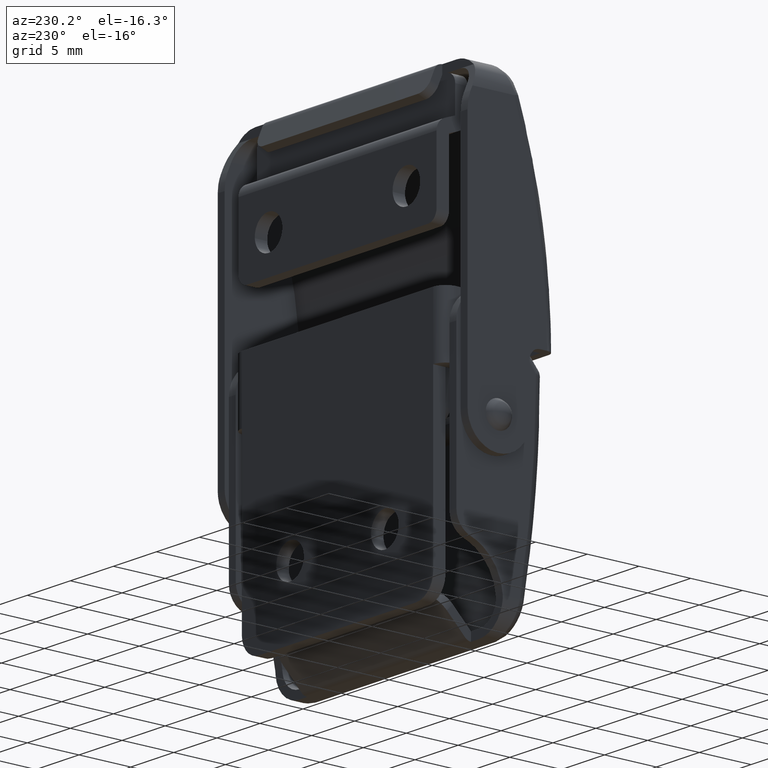
[diagram: clean part render]
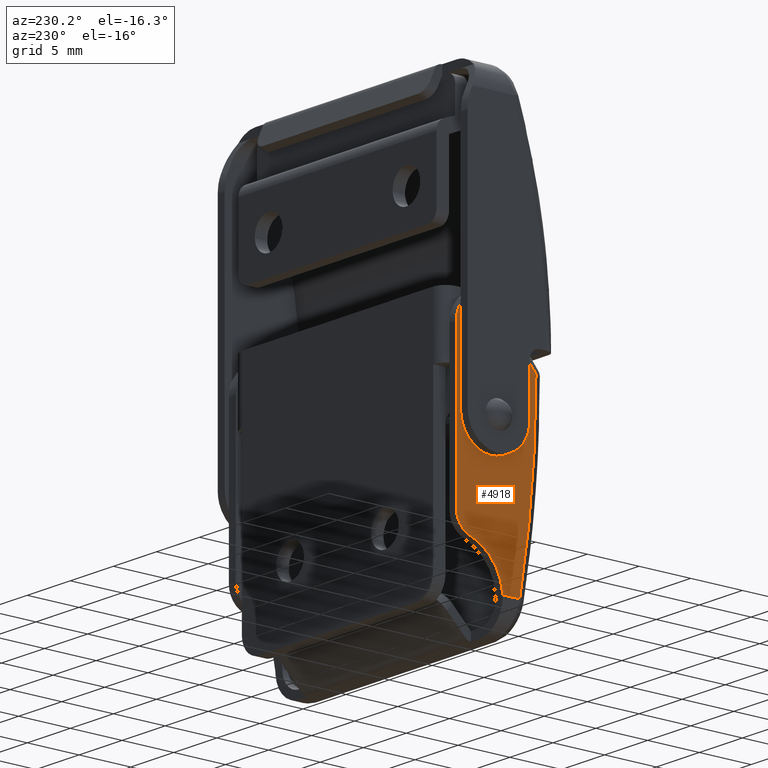
[diagram: same view with one face highlighted and labeled with its STEP entity id]
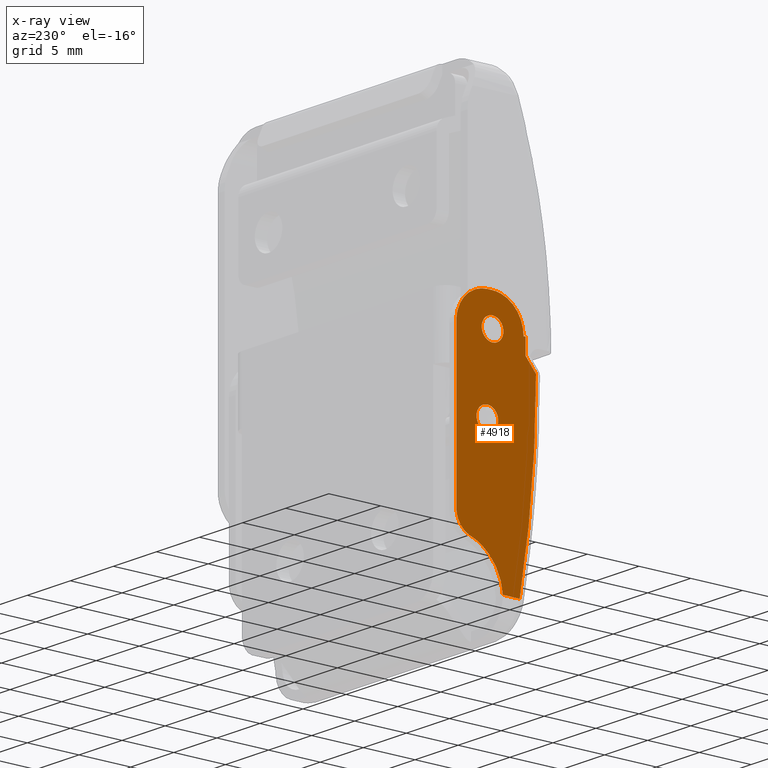
[diagram: x-ray of the same camera — body ghosted, the highlighted face saturated]
A machine part, auxiliary view. The second image highlights one B-rep face of the part: STEP entity #4918.
The next image is the same camera in x-ray: the body ghosted, the highlighted face saturated — about 0% of this face is hidden behind the body in this view.
In plain terms, the highlighted face is a freeform B-spline surface patch.
Its self-contained STEP definition (entity closure, byte-faithful):
#2234=CARTESIAN_POINT('',(-13.199999999999880,-5.042660002574005,14.376064052826949));
#2235=VERTEX_POINT('',#2234);
#2241=CARTESIAN_POINT('',(-13.199999999999880,-3.999999999981810,15.549999999970799));
#2242=VERTEX_POINT('',#2241);
#2243=CARTESIAN_POINT('',(-13.199999999999878,-5.042660002574005,14.376064052826955));
#2244=CARTESIAN_POINT('',(-13.199999999999878,-5.049999999981810,14.437814673574065));
#2245=CARTESIAN_POINT('',(-13.199999999999880,-5.049999999981810,14.499999999970800));
#2246=CARTESIAN_POINT('',(-13.199999999999880,-5.049999999981810,15.549999999970805));
#2247=CARTESIAN_POINT('',(-13.199999999999880,-3.999999999981810,15.549999999970799));
#2255=(BOUNDED_CURVE()B_SPLINE_CURVE(2,(#2243,#2244,#2245,#2246,#2247),.UNSPECIFIED.,.F.,.U.)B_SPLINE_CURVE_WITH_KNOTS((3,2,3),(0.229562473271133,0.250000000000000,0.500000000000000),.UNSPECIFIED.)CURVE()GEOMETRIC_REPRESENTATION_ITEM()RATIONAL_B_SPLINE_CURVE((0.956026753708634,0.976055948047185,1.0,0.707106781186548,1.0))REPRESENTATION_ITEM(''));
#2256=EDGE_CURVE('',#2235,#2242,#2255,.T.);
#2258=CARTESIAN_POINT('',(-13.199999999999880,-2.951958461665878,14.564100966924309));
#2259=VERTEX_POINT('',#2258);
#2260=CARTESIAN_POINT('',(-13.199999999999880,-3.999999999981810,15.549999999970799));
#2261=CARTESIAN_POINT('',(-13.199999999999880,-3.012258630565351,15.549999999970805));
#2262=CARTESIAN_POINT('',(-13.199999999999878,-2.951958461665878,14.564100966924309));
#2270=(BOUNDED_CURVE()B_SPLINE_CURVE(2,(#2260,#2261,#2262),.UNSPECIFIED.,.F.,.U.)B_SPLINE_CURVE_WITH_KNOTS((3,3),(0.500000000000000,0.739332962096459),.UNSPECIFIED.)CURVE()GEOMETRIC_REPRESENTATION_ITEM()RATIONAL_B_SPLINE_CURVE((1.0,0.719603993453640,0.976072041361348))REPRESENTATION_ITEM(''));
#2271=EDGE_CURVE('',#2242,#2259,#2270,.T.);
#2345=CARTESIAN_POINT('',(-13.199999999999880,-3.999999999981810,13.449999999970800));
#2346=VERTEX_POINT('',#2345);
#2347=CARTESIAN_POINT('',(-13.199999999999884,-2.951958461665878,14.564100966924308));
#2348=CARTESIAN_POINT('',(-13.199999999999877,-2.949999999981809,14.532080401877465));
#2349=CARTESIAN_POINT('',(-13.199999999999880,-2.949999999981810,14.499999999970800));
#2350=CARTESIAN_POINT('',(-13.199999999999880,-2.949999999981810,13.449999999970800));
#2351=CARTESIAN_POINT('',(-13.199999999999880,-3.999999999981810,13.449999999970800));
#2359=(BOUNDED_CURVE()B_SPLINE_CURVE(2,(#2347,#2348,#2349,#2350,#2351),.UNSPECIFIED.,.F.,.U.)B_SPLINE_CURVE_WITH_KNOTS((3,2,3),(0.739332962096459,0.750000000000000,1.0),.UNSPECIFIED.)CURVE()GEOMETRIC_REPRESENTATION_ITEM()RATIONAL_B_SPLINE_CURVE((0.976072041361347,0.987502787732907,1.0,0.707106781186548,1.0))REPRESENTATION_ITEM(''));
#2360=EDGE_CURVE('',#2259,#2346,#2359,.T.);
#2362=CARTESIAN_POINT('',(-13.199999999999880,-3.999999999981810,13.449999999970800));
#2363=CARTESIAN_POINT('',(-13.199999999999880,-4.932583250872002,13.449999999970800));
#2364=CARTESIAN_POINT('',(-13.199999999999875,-5.042660002574005,14.376064052826953));
#2372=(BOUNDED_CURVE()B_SPLINE_CURVE(2,(#2362,#2363,#2364),.UNSPECIFIED.,.F.,.U.)B_SPLINE_CURVE_WITH_KNOTS((3,3),(0.0,0.229562473271133),.UNSPECIFIED.)CURVE()GEOMETRIC_REPRESENTATION_ITEM()RATIONAL_B_SPLINE_CURVE((1.0,0.731050833139363,0.956026753708634))REPRESENTATION_ITEM(''));
#2373=EDGE_CURVE('',#2346,#2235,#2372,.T.);
#2606=CARTESIAN_POINT('',(-13.199999999999880,-4.542660002592196,7.376064052856153));
#2607=VERTEX_POINT('',#2606);
#2613=CARTESIAN_POINT('',(-13.199999999999880,-3.500000000000000,8.550000000000001));
#2614=VERTEX_POINT('',#2613);
#2615=CARTESIAN_POINT('',(-13.199999999999884,-4.542660002592196,7.376064052856153));
#2616=CARTESIAN_POINT('',(-13.199999999999886,-4.550000000000001,7.437814673603270));
#2617=CARTESIAN_POINT('',(-13.199999999999880,-4.550000000000000,7.500000000000000));
#2618=CARTESIAN_POINT('',(-13.199999999999880,-4.550000000000001,8.550000000000001));
#2619=CARTESIAN_POINT('',(-13.199999999999880,-3.500000000000000,8.550000000000001));
#2627=(BOUNDED_CURVE()B_SPLINE_CURVE(2,(#2615,#2616,#2617,#2618,#2619),.UNSPECIFIED.,.F.,.U.)B_SPLINE_CURVE_WITH_KNOTS((3,2,3),(0.229562473271133,0.250000000000000,0.500000000000000),.UNSPECIFIED.)CURVE()GEOMETRIC_REPRESENTATION_ITEM()RATIONAL_B_SPLINE_CURVE((0.956026753708634,0.976055948047185,1.0,0.707106781186548,1.0))REPRESENTATION_ITEM(''));
#2628=EDGE_CURVE('',#2607,#2614,#2627,.T.);
#2630=CARTESIAN_POINT('',(-13.199999999999880,-2.451958461684068,7.564100966953509));
#2631=VERTEX_POINT('',#2630);
#2632=CARTESIAN_POINT('',(-13.199999999999880,-3.500000000000000,8.550000000000001));
#2633=CARTESIAN_POINT('',(-13.199999999999880,-2.512258630583542,8.550000000000001));
#2634=CARTESIAN_POINT('',(-13.199999999999878,-2.451958461684068,7.564100966953509));
#2642=(BOUNDED_CURVE()B_SPLINE_CURVE(2,(#2632,#2633,#2634),.UNSPECIFIED.,.F.,.U.)B_SPLINE_CURVE_WITH_KNOTS((3,3),(0.500000000000000,0.739332962096459),.UNSPECIFIED.)CURVE()GEOMETRIC_REPRESENTATION_ITEM()RATIONAL_B_SPLINE_CURVE((1.0,0.719603993453640,0.976072041361348))REPRESENTATION_ITEM(''));
#2643=EDGE_CURVE('',#2614,#2631,#2642,.T.);
#2717=CARTESIAN_POINT('',(-13.199999999999880,-3.500000000000000,6.450000000000000));
#2718=VERTEX_POINT('',#2717);
#2719=CARTESIAN_POINT('',(-13.199999999999875,-2.451958461684069,7.564100966953509));
#2720=CARTESIAN_POINT('',(-13.199999999999878,-2.449999999999999,7.532080401906667));
#2721=CARTESIAN_POINT('',(-13.199999999999880,-2.450000000000000,7.500000000000000));
#2722=CARTESIAN_POINT('',(-13.199999999999880,-2.449999999999999,6.450000000000001));
#2723=CARTESIAN_POINT('',(-13.199999999999880,-3.500000000000000,6.450000000000000));
#2731=(BOUNDED_CURVE()B_SPLINE_CURVE(2,(#2719,#2720,#2721,#2722,#2723),.UNSPECIFIED.,.F.,.U.)B_SPLINE_CURVE_WITH_KNOTS((3,2,3),(0.739332962096459,0.750000000000000,1.0),.UNSPECIFIED.)CURVE()GEOMETRIC_REPRESENTATION_ITEM()RATIONAL_B_SPLINE_CURVE((0.976072041361347,0.987502787732907,1.0,0.707106781186548,1.0))REPRESENTATION_ITEM(''));
#2732=EDGE_CURVE('',#2631,#2718,#2731,.T.);
#2734=CARTESIAN_POINT('',(-13.199999999999880,-3.500000000000000,6.450000000000000));
#2735=CARTESIAN_POINT('',(-13.199999999999880,-4.432583250890192,6.450000000000001));
#2736=CARTESIAN_POINT('',(-13.199999999999884,-4.542660002592196,7.376064052856153));
#2744=(BOUNDED_CURVE()B_SPLINE_CURVE(2,(#2734,#2735,#2736),.UNSPECIFIED.,.F.,.U.)B_SPLINE_CURVE_WITH_KNOTS((3,3),(0.0,0.229562473271133),.UNSPECIFIED.)CURVE()GEOMETRIC_REPRESENTATION_ITEM()RATIONAL_B_SPLINE_CURVE((1.0,0.731050833139363,0.956026753708634))REPRESENTATION_ITEM(''));
#2745=EDGE_CURVE('',#2718,#2607,#2744,.T.);
#2775=CARTESIAN_POINT('',(-13.199999999999999,-8.200000000000001,11.800000000014800));
#2776=VERTEX_POINT('',#2775);
#2841=CARTESIAN_POINT('',(-13.199999999999999,-7.199999999981809,13.012697677192239));
#2842=VERTEX_POINT('',#2841);
#2856=CARTESIAN_POINT('',(-13.199999999999999,-8.200000000000001,11.800000000014800));
#2857=CARTESIAN_POINT('',(-13.199999999999999,-7.199999999981809,13.012697677192239));
#2858=QUASI_UNIFORM_CURVE('',1,(#2856,#2857),.UNSPECIFIED.,.F.,.U.);
#2859=EDGE_CURVE('',#2776,#2842,#2858,.T.);
#2887=CARTESIAN_POINT('',(-13.199999999999999,-6.621085139310890,-5.900000000000000));
#2888=VERTEX_POINT('',#2887);
#2918=CARTESIAN_POINT('',(-13.199999999999999,-6.621085139310853,-5.900000000000015));
#2919=CARTESIAN_POINT('',(-13.199999999999996,-8.199999999999999,2.879577058275664));
#2920=CARTESIAN_POINT('',(-13.199999999999999,-8.199999999999999,11.800000000014800));
#2928=(BOUNDED_CURVE()B_SPLINE_CURVE(2,(#2918,#2919,#2920),.UNSPECIFIED.,.F.,.U.)CURVE()GEOMETRIC_REPRESENTATION_ITEM()QUASI_UNIFORM_CURVE()RATIONAL_B_SPLINE_CURVE((1.0,0.996044891406283,1.0))REPRESENTATION_ITEM(''));
#2929=EDGE_CURVE('',#2888,#2776,#2928,.T.);
#2948=CARTESIAN_POINT('',(-13.199999999999999,-7.199999999981809,14.499999999970800));
#2949=VERTEX_POINT('',#2948);
#2965=CARTESIAN_POINT('',(-13.199999999999999,-7.199999999981809,13.012697677192239));
#2966=CARTESIAN_POINT('',(-13.199999999999999,-7.199999999981809,14.499999999970800));
#2967=QUASI_UNIFORM_CURVE('',1,(#2965,#2966),.UNSPECIFIED.,.F.,.U.);
#2968=EDGE_CURVE('',#2842,#2949,#2967,.T.);
#3821=CARTESIAN_POINT('',(-13.199999999999880,-4.989988864122401,-5.900000000000100));
#3822=VERTEX_POINT('',#3821);
#3823=CARTESIAN_POINT('',(-13.199999999999880,-4.989988864122401,-5.900000000000100));
#3824=CARTESIAN_POINT('',(-13.199999999999999,-6.621085139310890,-5.900000000000000));
#3825=QUASI_UNIFORM_CURVE('',1,(#3823,#3824),.UNSPECIFIED.,.F.,.U.);
#3826=EDGE_CURVE('',#3822,#2888,#3825,.T.);
#4816=CARTESIAN_POINT('',(-13.199999999999999,-0.115385042428411,18.668829954615610));
#4817=CARTESIAN_POINT('',(-13.199999999999999,-8.584614613349537,18.668829954615610));
#4818=CARTESIAN_POINT('',(-13.199999999999999,-0.115385042428411,-7.068830582281813));
#4819=CARTESIAN_POINT('',(-13.199999999999999,-8.584614613349537,-7.068830582281813));
#4820=B_SPLINE_SURFACE_WITH_KNOTS('',1,1,((#4816,#4818),(#4817,#4819)),.UNSPECIFIED.,.F.,.F.,.U.,(2,2),(2,2),(0.0,8.469229570921126),(0.0,25.737660536897419),.UNSPECIFIED.);
#4821=ORIENTED_EDGE('',*,*,#2859,.T.);
#4822=ORIENTED_EDGE('',*,*,#2968,.T.);
#4823=CARTESIAN_POINT('',(-13.199999999999880,-6.999999999981810,14.499999999970800));
#4824=VERTEX_POINT('',#4823);
#4825=CARTESIAN_POINT('',(-13.199999999999999,-7.199999999981809,14.499999999970800));
#4826=CARTESIAN_POINT('',(-13.199999999999880,-6.999999999981810,14.499999999970800));
#4827=QUASI_UNIFORM_CURVE('',1,(#4825,#4826),.UNSPECIFIED.,.F.,.U.);
#4828=EDGE_CURVE('',#2949,#4824,#4827,.T.);
#4829=ORIENTED_EDGE('',*,*,#4828,.T.);
#4830=CARTESIAN_POINT('',(-13.199999999999880,-3.999999999981810,17.499999999970800));
#4831=VERTEX_POINT('',#4830);
#4832=CARTESIAN_POINT('',(-13.199999999999880,-6.999999999981810,14.499999999970800));
#4833=CARTESIAN_POINT('',(-13.199999999999880,-6.999999999981810,17.499999999970807));
#4834=CARTESIAN_POINT('',(-13.199999999999880,-3.999999999981810,17.499999999970800));
#4842=(BOUNDED_CURVE()B_SPLINE_CURVE(2,(#4832,#4833,#4834),.UNSPECIFIED.,.F.,.U.)CURVE()GEOMETRIC_REPRESENTATION_ITEM()QUASI_UNIFORM_CURVE()RATIONAL_B_SPLINE_CURVE((1.0,0.707106781186548,1.0))REPRESENTATION_ITEM(''));
#4843=EDGE_CURVE('',#4824,#4831,#4842,.T.);
#4844=ORIENTED_EDGE('',*,*,#4843,.T.);
#4845=CARTESIAN_POINT('',(-13.199999999999880,-3.500000000004265,17.499999999970800));
#4846=VERTEX_POINT('',#4845);
#4847=CARTESIAN_POINT('',(-13.199999999999880,-3.999999999981810,17.499999999970800));
#4848=CARTESIAN_POINT('',(-13.199999999999880,-3.500000000004265,17.499999999970800));
#4849=QUASI_UNIFORM_CURVE('',1,(#4847,#4848),.UNSPECIFIED.,.F.,.U.);
#4850=EDGE_CURVE('',#4831,#4846,#4849,.T.);
#4851=ORIENTED_EDGE('',*,*,#4850,.T.);
#4852=CARTESIAN_POINT('',(-13.199999999999880,-0.500000000004263,14.499999999972760));
#4853=VERTEX_POINT('',#4852);
#4854=CARTESIAN_POINT('',(-13.199999999999880,-3.500000000004265,17.499999999970800));
#4855=CARTESIAN_POINT('',(-13.199999999999880,-0.500000000006226,17.499999999970804));
#4856=CARTESIAN_POINT('',(-13.199999999999880,-0.500000000004265,14.499999999972760));
#4864=(BOUNDED_CURVE()B_SPLINE_CURVE(2,(#4854,#4855,#4856),.UNSPECIFIED.,.F.,.U.)CURVE()GEOMETRIC_REPRESENTATION_ITEM()QUASI_UNIFORM_CURVE()RATIONAL_B_SPLINE_CURVE((1.0,0.707106781186779,1.0))REPRESENTATION_ITEM(''));
#4865=EDGE_CURVE('',#4846,#4853,#4864,.T.);
#4866=ORIENTED_EDGE('',*,*,#4865,.T.);
#4867=CARTESIAN_POINT('',(-13.199999999999880,-0.499999999994770,-0.015341561575696));
#4868=VERTEX_POINT('',#4867);
#4869=CARTESIAN_POINT('',(-13.199999999999880,-0.500000000004263,14.499999999972760));
#4870=CARTESIAN_POINT('',(-13.199999999999880,-0.499999999994770,-0.015341561575696));
#4871=QUASI_UNIFORM_CURVE('',1,(#4869,#4870),.UNSPECIFIED.,.F.,.U.);
#4872=EDGE_CURVE('',#4853,#4868,#4871,.T.);
#4873=ORIENTED_EDGE('',*,*,#4872,.T.);
#4874=CARTESIAN_POINT('',(-13.199999999999880,-1.884615384593510,-1.918313388784650));
#4875=VERTEX_POINT('',#4874);
#4876=CARTESIAN_POINT('',(-13.199999999999880,-0.499999999994770,-0.015341561575696));
#4877=CARTESIAN_POINT('',(-13.199999999999886,-0.499999999978966,-1.470555311793270));
#4878=CARTESIAN_POINT('',(-13.199999999999880,-1.884615384593509,-1.918313388784650));
#4886=(BOUNDED_CURVE()B_SPLINE_CURVE(2,(#4876,#4877,#4878),.UNSPECIFIED.,.F.,.U.)CURVE()GEOMETRIC_REPRESENTATION_ITEM()QUASI_UNIFORM_CURVE()RATIONAL_B_SPLINE_CURVE((1.0,0.808607540062721,1.0))REPRESENTATION_ITEM(''));
#4887=EDGE_CURVE('',#4868,#4875,#4886,.T.);
#4888=ORIENTED_EDGE('',*,*,#4887,.T.);
#4889=CARTESIAN_POINT('',(-13.199999999999880,-4.989988864122404,-5.900000000000100));
#4890=CARTESIAN_POINT('',(-13.199999999999880,-4.786654999762681,-2.856777378048145));
#4891=CARTESIAN_POINT('',(-13.199999999999880,-1.884615384593515,-1.918313388784632));
#4899=(BOUNDED_CURVE()B_SPLINE_CURVE(2,(#4889,#4890,#4891),.UNSPECIFIED.,.F.,.U.)CURVE()GEOMETRIC_REPRESENTATION_ITEM()QUASI_UNIFORM_CURVE()RATIONAL_B_SPLINE_CURVE((1.0,0.827780218363764,1.0))REPRESENTATION_ITEM(''));
#4900=EDGE_CURVE('',#3822,#4875,#4899,.T.);
#4901=ORIENTED_EDGE('',*,*,#4900,.F.);
#4902=ORIENTED_EDGE('',*,*,#3826,.T.);
#4903=ORIENTED_EDGE('',*,*,#2929,.T.);
#4904=EDGE_LOOP('',(#4821,#4822,#4829,#4844,#4851,#4866,#4873,#4888,#4901,#4902,#4903));
#4905=FACE_OUTER_BOUND('',#4904,.T.);
#4906=ORIENTED_EDGE('',*,*,#2643,.F.);
#4907=ORIENTED_EDGE('',*,*,#2628,.F.);
#4908=ORIENTED_EDGE('',*,*,#2745,.F.);
#4909=ORIENTED_EDGE('',*,*,#2732,.F.);
#4910=EDGE_LOOP('',(#4906,#4907,#4908,#4909));
#4911=FACE_BOUND('',#4910,.T.);
#4912=ORIENTED_EDGE('',*,*,#2271,.F.);
#4913=ORIENTED_EDGE('',*,*,#2256,.F.);
#4914=ORIENTED_EDGE('',*,*,#2373,.F.);
#4915=ORIENTED_EDGE('',*,*,#2360,.F.);
#4916=EDGE_LOOP('',(#4912,#4913,#4914,#4915));
#4917=FACE_BOUND('',#4916,.T.);
#4918=ADVANCED_FACE('',(#4905,#4911,#4917),#4820,.F.);